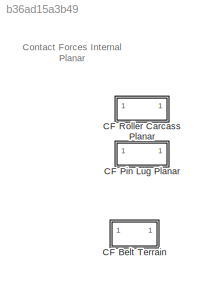
MODEL slx_b36ad15a3b49
KIND library
CONFIG SolverName = VariableStepAuto
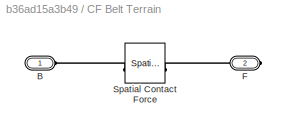
BLOCK [SubSystem] CF Belt Terrain
BLOCK [PMIOPort] CF Belt Terrain/B
  Side = Left
BLOCK [PMIOPort] CF Belt Terrain/F
  Port = 2
  Side = Right
BLOCK [Reference] CF Belt Terrain/Spatial Contact Force  REF=sm_lib/Forces and
Torques/Spatial
Contact Force
  SourceBlock = sm_lib/Forces and\nTorques/Spatial\nContact Force
  SourceType = Spatial\nContact Force
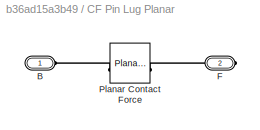
BLOCK [SubSystem] CF Pin Lug Planar
BLOCK [PMIOPort] CF Pin Lug Planar/B
  Side = Left
BLOCK [PMIOPort] CF Pin Lug Planar/F
  Port = 2
  Side = Right
BLOCK [Reference] CF Pin Lug Planar/Planar Contact Force  REF=sm_lib/Forces and
Torques/Planar
Contact Force
  SourceBlock = sm_lib/Forces and\nTorques/Planar\nContact Force
  SourceType = Planar\nContact Force
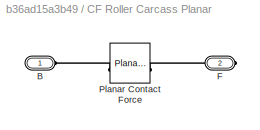
BLOCK [SubSystem] CF Roller Carcass Planar
BLOCK [PMIOPort] CF Roller Carcass Planar/B
  Side = Left
BLOCK [PMIOPort] CF Roller Carcass Planar/F
  Port = 2
  Side = Right
BLOCK [Reference] CF Roller Carcass Planar/Planar Contact Force  REF=sm_lib/Forces and
Torques/Planar
Contact Force
  SourceBlock = sm_lib/Forces and\nTorques/Planar\nContact Force
  SourceType = Planar\nContact Force
ANNOTATION (root): Contact Forces Internal Planar
PLINE CF Belt Terrain/B:RConn1 -- CF Belt Terrain/Spatial Contact Force:LConn1
PLINE CF Belt Terrain/F:RConn1 -- CF Belt Terrain/Spatial Contact Force:RConn1
PLINE CF Pin Lug Planar/B:RConn1 -- CF Pin Lug Planar/Planar Contact Force:LConn1
PLINE CF Pin Lug Planar/F:RConn1 -- CF Pin Lug Planar/Planar Contact Force:RConn1
PLINE CF Roller Carcass Planar/B:RConn1 -- CF Roller Carcass Planar/Planar Contact Force:LConn1
PLINE CF Roller Carcass Planar/F:RConn1 -- CF Roller Carcass Planar/Planar Contact Force:RConn1
